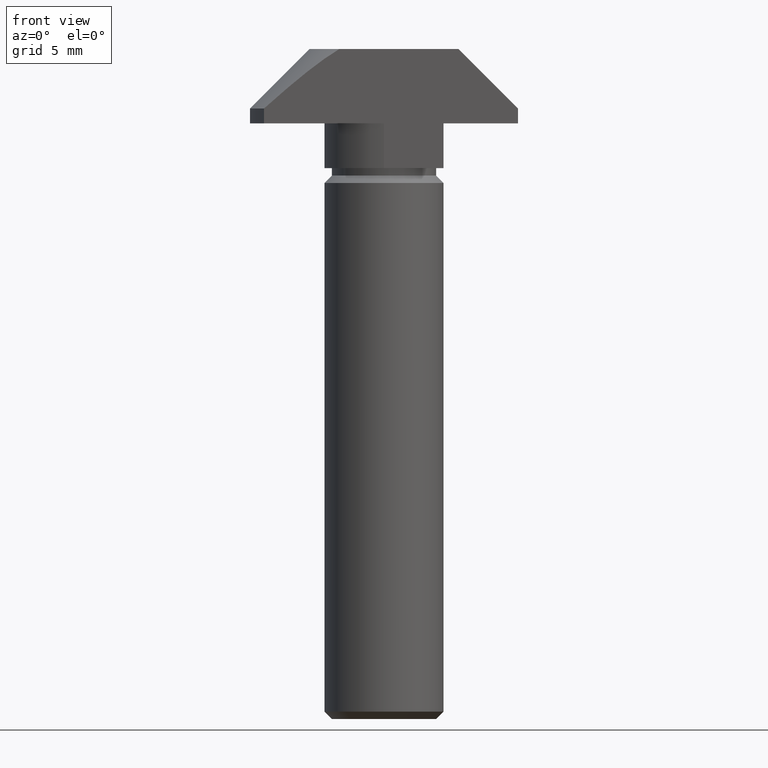
[diagram: clean part render]
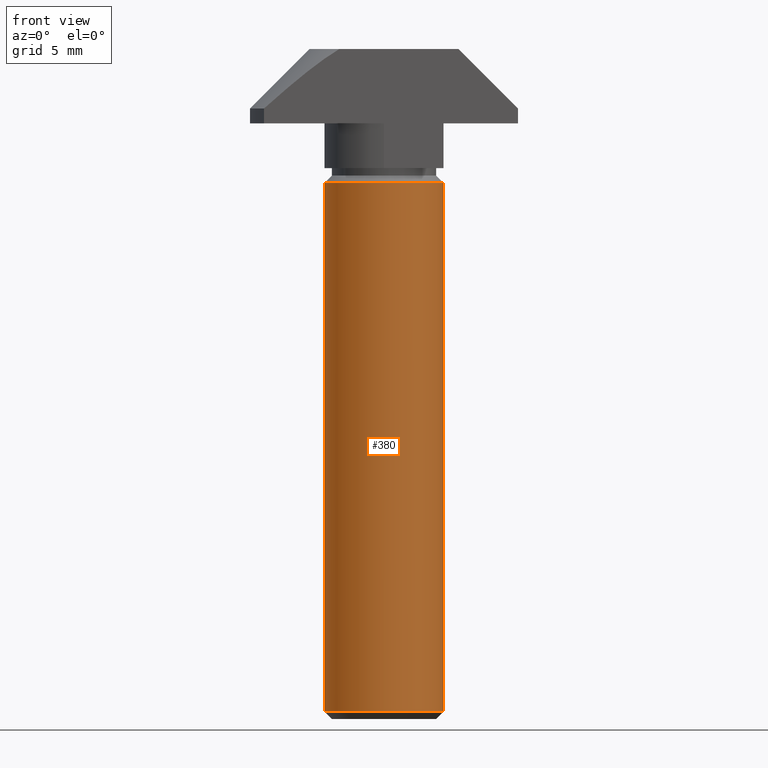
[diagram: same view with one face highlighted and labeled with its STEP entity id]
A machine part, front view. The second image highlights one B-rep face of the part: STEP entity #380.
In plain terms, the highlighted cylindrical surface (bore or boss wall) has radius 4 mm, axis along (0, 0, -1).
Its self-contained STEP definition (entity closure, byte-faithful):
#31=CYLINDRICAL_SURFACE('',#428,4.);
#38=FACE_OUTER_BOUND('',#61,.T.);
#61=EDGE_LOOP('',(#269,#270,#271,#272));
#85=LINE('',#589,#123);
#123=VECTOR('',#476,4.);
#161=CIRCLE('',#427,4.);
#162=CIRCLE('',#429,4.);
#176=VERTEX_POINT('',#583);
#177=VERTEX_POINT('',#587);
#212=EDGE_CURVE('',#176,#176,#161,.T.);
#213=EDGE_CURVE('',#177,#177,#162,.T.);
#214=EDGE_CURVE('',#177,#176,#85,.T.);
#269=ORIENTED_EDGE('',*,*,#213,.F.);
#270=ORIENTED_EDGE('',*,*,#214,.T.);
#271=ORIENTED_EDGE('',*,*,#212,.F.);
#272=ORIENTED_EDGE('',*,*,#214,.F.);
#380=ADVANCED_FACE('',(#38),#31,.T.);
#427=AXIS2_PLACEMENT_3D('',#585,#470,#471);
#428=AXIS2_PLACEMENT_3D('',#586,#472,#473);
#429=AXIS2_PLACEMENT_3D('',#588,#474,#475);
#470=DIRECTION('center_axis',(0.,0.,1.));
#471=DIRECTION('ref_axis',(1.,0.,0.));
#472=DIRECTION('center_axis',(0.,0.,-1.));
#473=DIRECTION('ref_axis',(1.,0.,0.));
#474=DIRECTION('center_axis',(0.,0.,-1.));
#475=DIRECTION('ref_axis',(1.,0.,0.));
#476=DIRECTION('',(0.,0.,1.));
#583=CARTESIAN_POINT('',(-4.,-4.89858719658941E-16,-9.));
#585=CARTESIAN_POINT('Origin',(0.,0.,-9.));
#586=CARTESIAN_POINT('Origin',(0.,0.,-8.5));
#587=CARTESIAN_POINT('',(-4.,4.89858719658941E-16,-44.5));
#588=CARTESIAN_POINT('Origin',(0.,0.,-44.5));
#589=CARTESIAN_POINT('',(-4.,4.89858719658941E-16,-8.5));